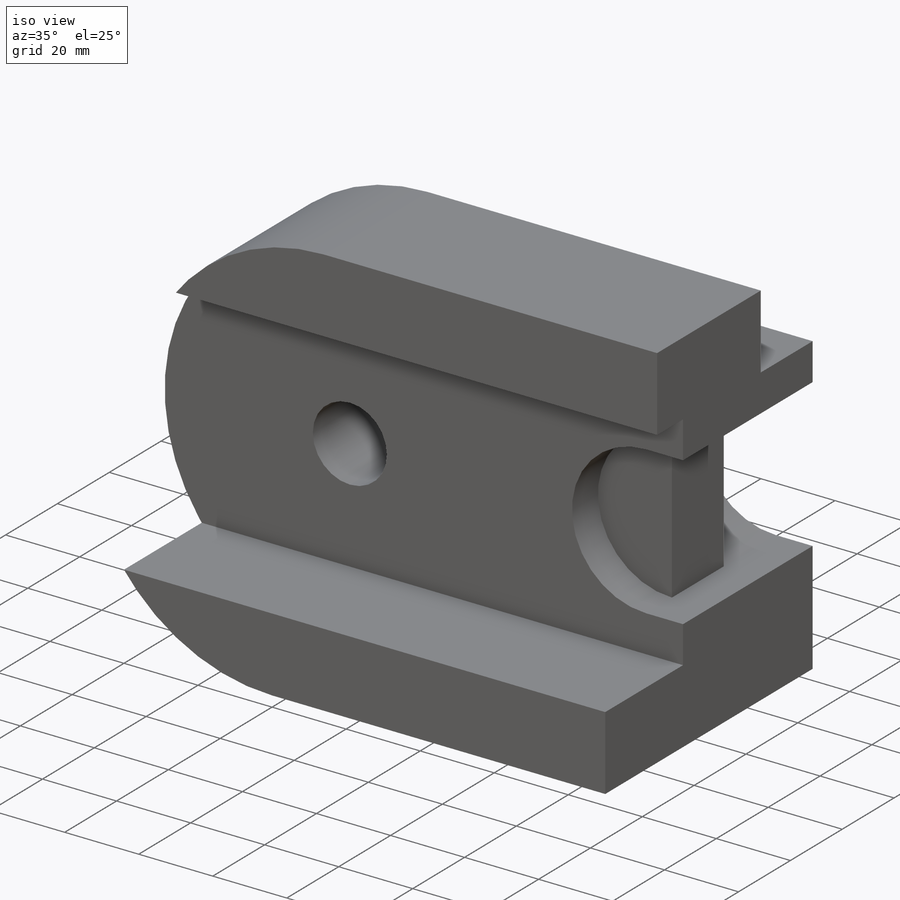
[diagram: iso view]
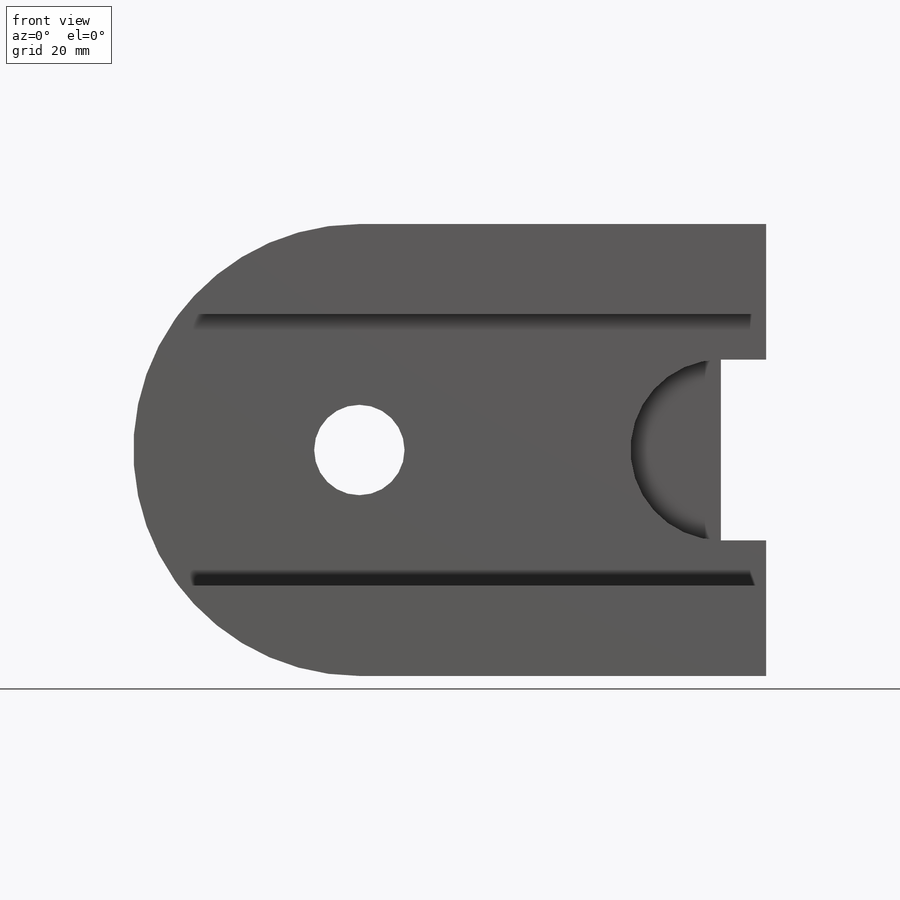
[diagram: front view]
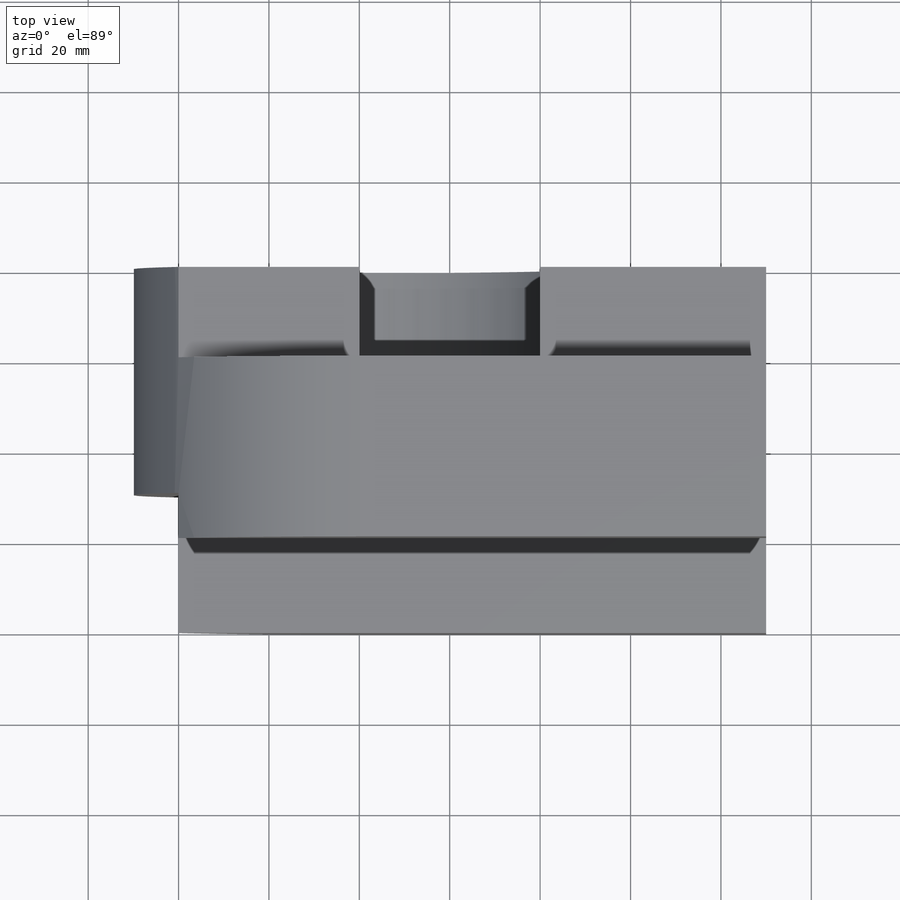
[diagram: top view]
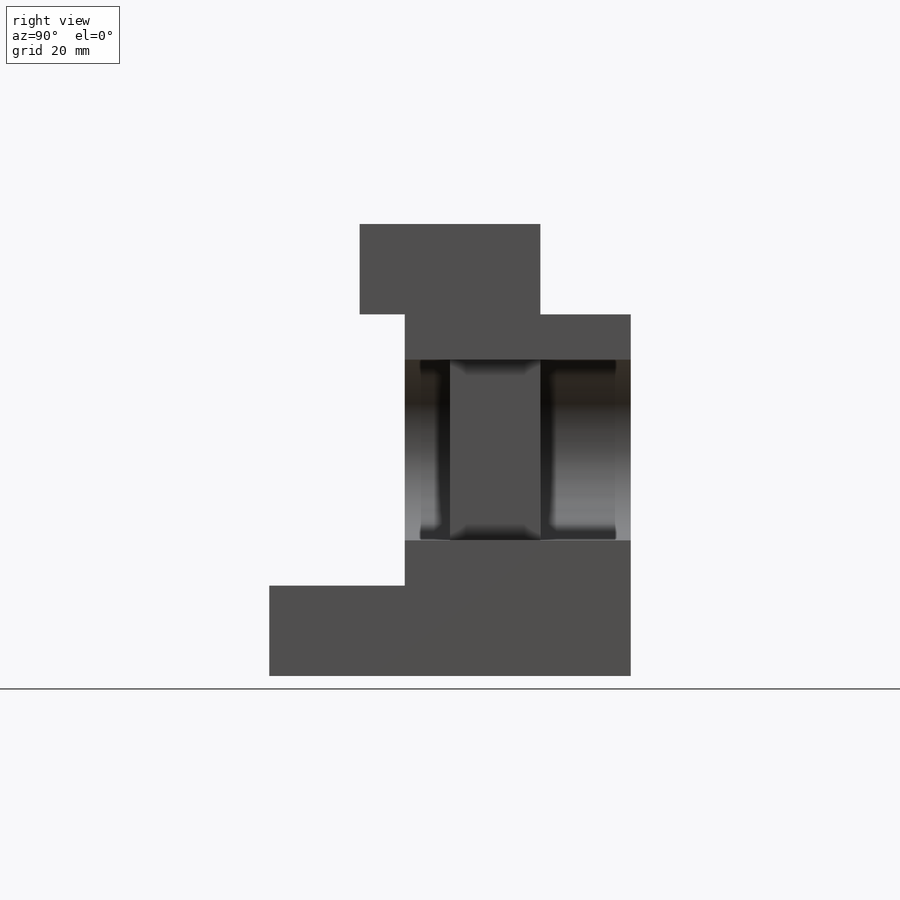
[diagram: right view]
SOLIDWORKS PART (.sldprt)
format: sldprt  version: not decoded by parser v0  size: 284,160 bytes
history: native  units: mm
features: sketch x9, cut_extrude x7, extrude x2, material x1, plane x1 (+13 scaffold rows collapsed)
feature tree (33):
  scaffold x13  (default folders/planes/origin — collapsed)
  material  "Material <not specified>"
  sketch  "Sketch1"  dims[c1.D1=100.0mm c1.D2=~15.598886mm c1.D4=~12.881849mm c1.D7=20.0mm c2.D2=90.0mm c2.D3=90.0mm c2.D4=10.0mm c2.D5=10.0mm c2.D6=10.0mm c2.D8=30.0mm c2.D9=30.0mm]
  extrude  "Boss-Extrude2"  Depth=80mm
  sketch  "Sketch8"  dims[c1.D1=~19.505007mm c1.D2=~23.28791mm c2.D1=20.0mm c2.D2=20.0mm]
  cut_extrude  "Cut-Extrude5"  Depth=205mm
  plane  "Plane2"  Offset=50mm
  sketch  "Sketch9"  dims[c1.D1=~68.554535mm c1.D2=~23.599748mm c2.D1=30.0mm c2.D2=50.0mm c2.D3=60.0mm c2.D4=20.0mm]
  cut_extrude  "Cut-Extrude6"  Depth=205mm
  sketch  "Sketch10"  dims[c1.D1=~13.579134mm c1.D2=~16.648203mm c2.D1=20.0mm c2.D2=20.0mm]
  cut_extrude  "Cut-Extrude8"  Depth=150mm
  sketch  "Sketch13"  dims[D1=20.0mm]
  cut_extrude  "Cut-Extrude9"  Depth=150mm
  sketch  "Sketch14"  dims[D1=40.0mm]
  extrude  "Boss-Extrude5"  Depth=40mm
  sketch  "Sketch15"  dims[D1=40.0mm]
  cut_extrude  "Cut-Extrude10"  Depth=20mm
  sketch  "Sketch16"  dims[c1.D1=100.0mm c1.D7=20.0mm c1.D9=49.999mm c1.D2=39.999mm c1.D3=19.999mm c1.D4=90.0mm c1.D5=79.999mm c1.D6=89.999mm c1.D8=20.0mm c2.D9=100.0mm]
  cut_extrude  "Cut-Extrude15"  Depth=20mm
  sketch  "Sketch18"  dims[c1.D1=~17.002439mm c1.D2=~12.090602mm c2.D1=10.0mm c2.D2=20.0mm]
  cut_extrude  "Cut-Extrude16"  Depth=0.0001mm
decode coverage: 18 of 18 modeling features carry decoded parameters
note: ~ marks probable driven/reference dimensions
note: suppression state not decoded; provenance and decode notes live in map.json
